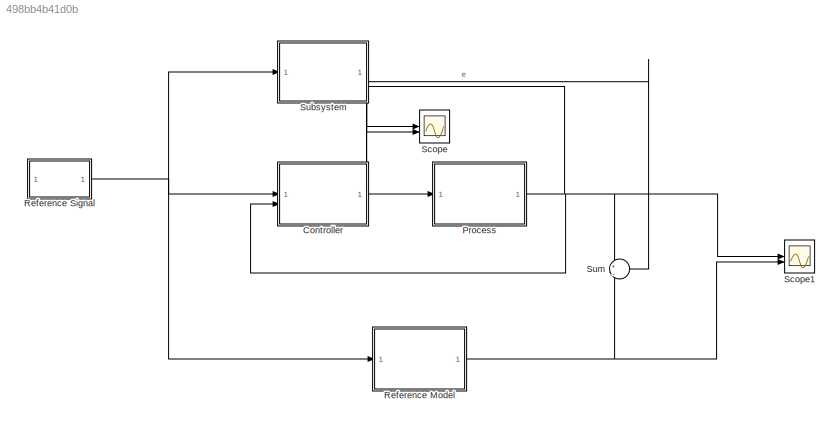
MODEL slx_498bb4b41d0b
KIND model
CONFIG AbsTol = auto
CONFIG EnableMultiTasking = off
CONFIG FixedStep = sample_time
CONFIG MaxStep = auto
CONFIG MinStep = auto
CONFIG RelTol = 1e-3
CONFIG SampleTimeConstraint = Unconstrained
CONFIG SolverName = FixedStepAuto
CONFIG StartTime = start_time
CONFIG StopTime = stop_time
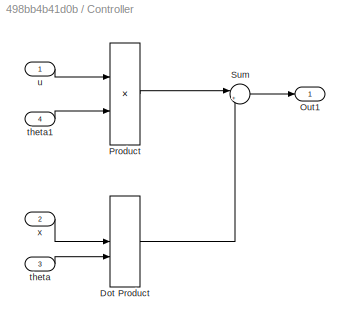
BLOCK [SubSystem] Controller
  PortSchema = {"entries":[{"content":{"sides":[{"content":{"connectorIds":["In1","In2"]},"type":"ConnectorPlacement.EquallySpacedRectSide","uuid":"19bfb658-27fd-4c0b-8786-eeb0e4dee2ae"},{"content":{"connectorIds":["Out1"],"side":"RIGHT"},"type":"ConnectorPlacement.EquallySpacedRectSide","uuid":"360b6564-60bd-491f-8609-763f4a4b58e6"},{"content":{"connectorIds":["In3","In4"],"side":"TOP"},"type":"ConnectorPlaceme...<+257ch>
BLOCK [DotProduct] Controller/Dot Product
  OutDataTypeStr = Inherit: Inherit via internal rule
BLOCK [Outport] Controller/Out1
BLOCK [Product] Controller/Product
BLOCK [Sum] Controller/Sum
  Inputs = |+-
BLOCK [Inport] Controller/theta
  Port = 3
BLOCK [Inport] Controller/theta1
  Port = 4
BLOCK [Inport] Controller/u
BLOCK [Inport] Controller/x
  Port = 2
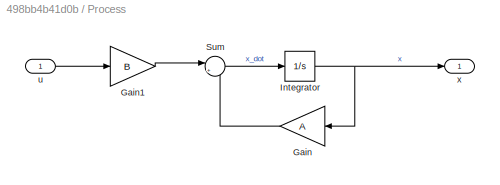
BLOCK [SubSystem] Process
BLOCK [Gain] Process/Gain
  Gain = A
  Multiplication = Matrix(K*u)
  NameLocation = top
BLOCK [Gain] Process/Gain1
  Gain = B
  Multiplication = Matrix(K*u)
BLOCK [Integrator] Process/Integrator
  InitialCondition = [0; 0]
BLOCK [Sum] Process/Sum
  Inputs = |++
BLOCK [Inport] Process/u
BLOCK [Outport] Process/x
  PortDimensions = [2 1]
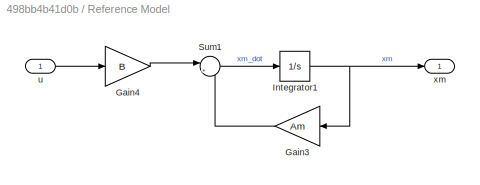
BLOCK [SubSystem] Reference Model
BLOCK [Gain] Reference Model/Gain3
  Gain = Am
  Multiplication = Matrix(K*u)
  NameLocation = top
BLOCK [Gain] Reference Model/Gain4
  Gain = B
  Multiplication = Matrix(K*u)
BLOCK [Integrator] Reference Model/Integrator1
  InitialCondition = [0; 0]
BLOCK [Sum] Reference Model/Sum1
  Inputs = |++
BLOCK [Inport] Reference Model/u
BLOCK [Outport] Reference Model/xm
  PortDimensions = [2 1]
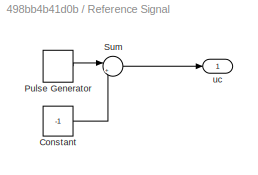
BLOCK [SubSystem] Reference Signal
BLOCK [Constant] Reference Signal/Constant
  Value = -1
BLOCK [DiscretePulseGenerator] Reference Signal/Pulse Generator
  Amplitude = 2
  Period = 20
  PulseType = Time based
  PulseWidth = 50
BLOCK [Sum] Reference Signal/Sum
  Inputs = |++
BLOCK [Outport] Reference Signal/uc
BLOCK [Scope] Scope
  Floating = off
  NumInputPorts = 2
  ScopeSpecificationString = Simulink.scopes.TimeScopeBlockCfg('CurrentConfiguration', extmgr.ConfigurationSet(extmgr.Configuration('Core','General UI',true),extmgr.Configuration('Core','Source UI',true),extmgr.Configuration('Sources','WiredSimulink',true,'DataLoggingVariableName','ScopeData1'),extmgr.Configuration('Visuals','Time Domain',true,'SerializedDisplays',{struct('MinYLimReal','-1.88736','MaxYLimReal','4.22512','YLab...<+1467ch>
BLOCK [Scope] Scope1
  Floating = off
  NumInputPorts = 2
  ScopeSpecificationString = Simulink.scopes.TimeScopeBlockCfg('CurrentConfiguration', extmgr.ConfigurationSet(extmgr.Configuration('Core','General UI',true),extmgr.Configuration('Core','Source UI',true),extmgr.Configuration('Sources','WiredSimulink',true,'DataLoggingVariableName','ScopeData1'),extmgr.Configuration('Visuals','Time Domain',true,'SerializedDisplays',{struct('MinYLimReal','-0.87693','MaxYLimReal','0.77605','YLab...<+1562ch>
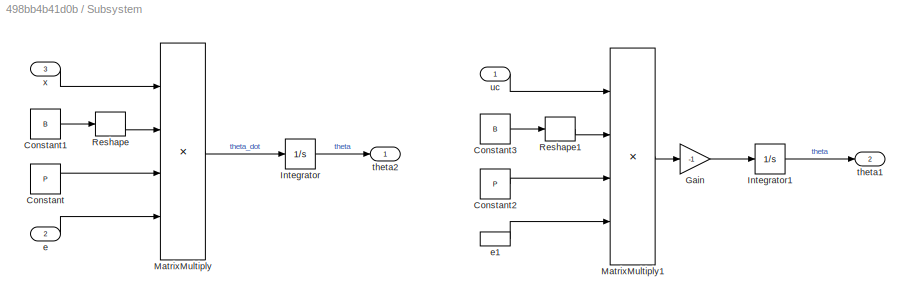
BLOCK [SubSystem] Subsystem
  PortSchema = {"entries":[{"content":{"sides":[{"content":{"connectorIds":["In1"]},"type":"ConnectorPlacement.EquallySpacedRectSide","uuid":"19bfb658-27fd-4c0b-8786-eeb0e4dee2ae"},{"content":{"connectorIds":["In2","In3"],"side":"RIGHT"},"type":"ConnectorPlacement.EquallySpacedRectSide","uuid":"360b6564-60bd-491f-8609-763f4a4b58e6"},{"content":{"side":"TOP"},"type":"ConnectorPlacement.EquallySpacedRectSide","uui...<+384ch>
BLOCK [Constant] Subsystem/Constant
  Value = P
BLOCK [Constant] Subsystem/Constant1
  Value = B
BLOCK [Constant] Subsystem/Constant2
  Value = P
BLOCK [Constant] Subsystem/Constant3
  Value = B
BLOCK [Gain] Subsystem/Gain
  Gain = -1
BLOCK [Integrator] Subsystem/Integrator
BLOCK [Integrator] Subsystem/Integrator1
BLOCK [Product] Subsystem/MatrixMultiply
  Inputs = 4
  Multiplication = Matrix(*)
BLOCK [Product] Subsystem/MatrixMultiply1
  Inputs = 4
  Multiplication = Matrix(*)
BLOCK [Reshape] Subsystem/Reshape
  OutputDimensionality = Row vector (2-D)
BLOCK [Reshape] Subsystem/Reshape1
  OutputDimensionality = Row vector (2-D)
BLOCK [Inport] Subsystem/e
  Port = 2
BLOCK [InportShadow] Subsystem/e1
  Port = 2
BLOCK [Outport] Subsystem/theta1
  Port = 2
BLOCK [Outport] Subsystem/theta2
BLOCK [Inport] Subsystem/uc
BLOCK [Inport] Subsystem/x
  Port = 3
BLOCK [Sum] Sum
  Inputs = +|-
LINE Controller/Dot Product:1 -> Controller/Sum:2
LINE Controller/Product:1 -> Controller/Sum:1
LINE Controller/Sum:1 -> Controller/Out1:1
LINE Controller/theta1:1 -> Controller/Product:2
LINE Controller/theta:1 -> Controller/Dot Product:2
LINE Controller/u:1 -> Controller/Product:1
LINE Controller/x:1 -> Controller/Dot Product:1
LINE Controller:1 -> Process:1
LINE Process/Gain1:1 -> Process/Sum:1
LINE Process/Gain:1 -> Process/Sum:2
NET Process/Integrator:1 -> Process/Gain:1, Process/x:1
LINE Process/Sum:1 -> Process/Integrator:1
LINE Process/u:1 -> Process/Gain1:1
NET Process:1 -> Controller:2, Scope1:1, Subsystem:3, Sum:1
LINE Reference Model/Gain3:1 -> Reference Model/Sum1:2
LINE Reference Model/Gain4:1 -> Reference Model/Sum1:1
NET Reference Model/Integrator1:1 -> Reference Model/Gain3:1, Reference Model/xm:1
LINE Reference Model/Sum1:1 -> Reference Model/Integrator1:1
LINE Reference Model/u:1 -> Reference Model/Gain4:1
NET Reference Model:1 -> Scope1:2, Sum:2
LINE Reference Signal/Constant:1 -> Reference Signal/Sum:2
LINE Reference Signal/Pulse Generator:1 -> Reference Signal/Sum:1
LINE Reference Signal/Sum:1 -> Reference Signal/uc:1
NET Reference Signal:1 -> Controller:1, Reference Model:1, Subsystem:1
LINE Subsystem/Constant1:1 -> Subsystem/Reshape:1
LINE Subsystem/Constant2:1 -> Subsystem/MatrixMultiply1:3
LINE Subsystem/Constant3:1 -> Subsystem/Reshape1:1
LINE Subsystem/Constant:1 -> Subsystem/MatrixMultiply:3
LINE Subsystem/Gain:1 -> Subsystem/Integrator1:1
LINE Subsystem/Integrator1:1 -> Subsystem/theta1:1
LINE Subsystem/Integrator:1 -> Subsystem/theta2:1
LINE Subsystem/MatrixMultiply1:1 -> Subsystem/Gain:1
LINE Subsystem/MatrixMultiply:1 -> Subsystem/Integrator:1
LINE Subsystem/Reshape1:1 -> Subsystem/MatrixMultiply1:2
LINE Subsystem/Reshape:1 -> Subsystem/MatrixMultiply:2
LINE Subsystem/e1:1 -> Subsystem/MatrixMultiply1:4
LINE Subsystem/e:1 -> Subsystem/MatrixMultiply:4
LINE Subsystem/uc:1 -> Subsystem/MatrixMultiply1:1
LINE Subsystem/x:1 -> Subsystem/MatrixMultiply:1
NET Subsystem:1 -> Controller:3, Scope:2
NET Subsystem:2 -> Controller:4, Scope:1
LINE Sum:1 -> Subsystem:2
note: NET lines group one-source signal fan-out (src -> all destinations, sorted); 1:1 wires keep LINE
